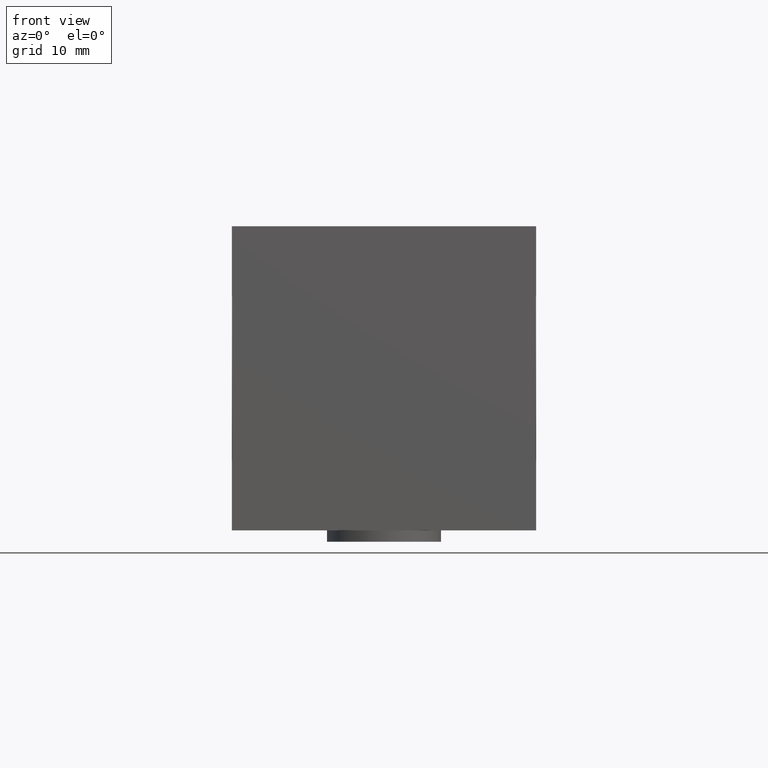
[diagram: clean part render]
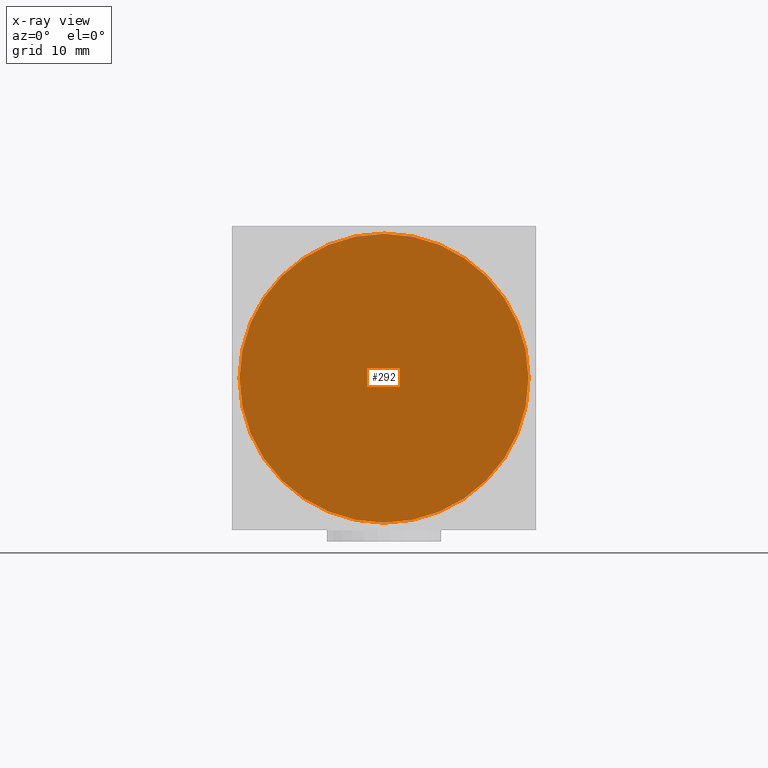
[diagram: x-ray — body ghosted, one internal face saturated and labeled with its STEP entity id]
A machine part, front view, then the same camera in x-ray: the body is ghosted and one INTERNAL B-rep face — a face not visible from any outside direction — is saturated and labeled: STEP entity #292.
In plain terms, the highlighted planar face has unit normal (0, 1, 0).
Its self-contained STEP definition (entity closure, byte-faithful):
#292 = ADVANCED_FACE( '', ( #645 ), #646, .F. );
#645 = FACE_OUTER_BOUND( '', #1090, .T. );
#646 = PLANE( '', #1091 );
#1090 = EDGE_LOOP( '', ( #1709 ) );
#1091 = AXIS2_PLACEMENT_3D( '', #1710, #1711, #1712 );
#1709 = ORIENTED_EDGE( '', *, *, #2579, .F. );
#1710 = CARTESIAN_POINT( '', ( 0.000000000000000, 0.000000000000000, 0.000000000000000 ) );
#1711 = DIRECTION( '', ( 1.00000000000000, 0.000000000000000, -0.000000000000000 ) );
#1712 = DIRECTION( '', ( -0.000000000000000, 0.000000000000000, -1.00000000000000 ) );
#2579 = EDGE_CURVE( '', #3086, #3086, #3087, .T. );
#3086 = VERTEX_POINT( '', #3736 );
#3087 = CIRCLE( '', #3737, 19.0000000000000 );
#3736 = CARTESIAN_POINT( '', ( 0.000000000000000, 0.000000000000000, -19.0000000000000 ) );
#3737 = AXIS2_PLACEMENT_3D( '', #4362, #4363, #4364 );
#4362 = CARTESIAN_POINT( '', ( 0.000000000000000, 0.000000000000000, 0.000000000000000 ) );
#4363 = DIRECTION( '', ( 1.00000000000000, 0.000000000000000, -0.000000000000000 ) );
#4364 = DIRECTION( '', ( -0.000000000000000, 0.000000000000000, -1.00000000000000 ) );